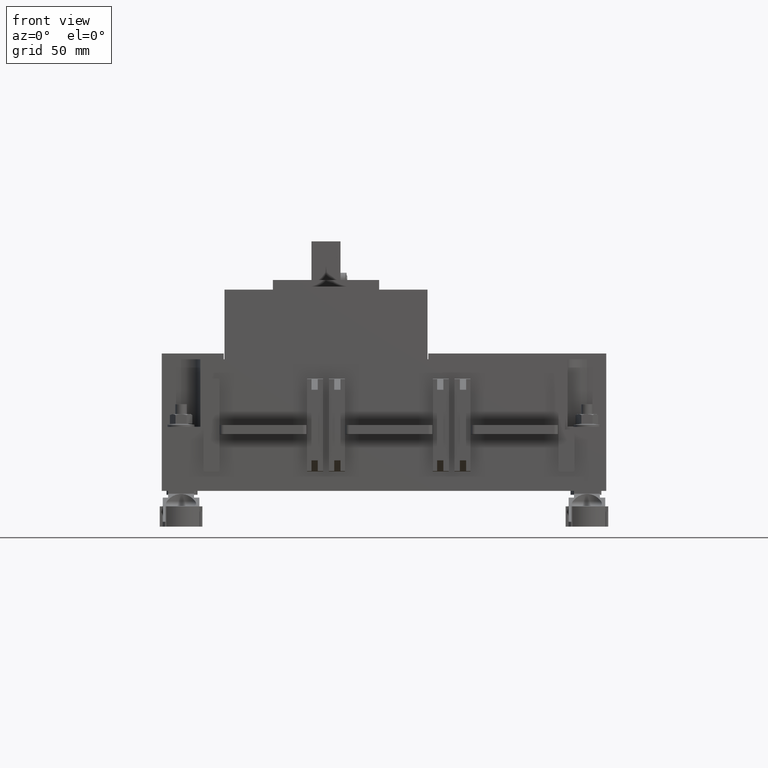
[diagram: clean part render]
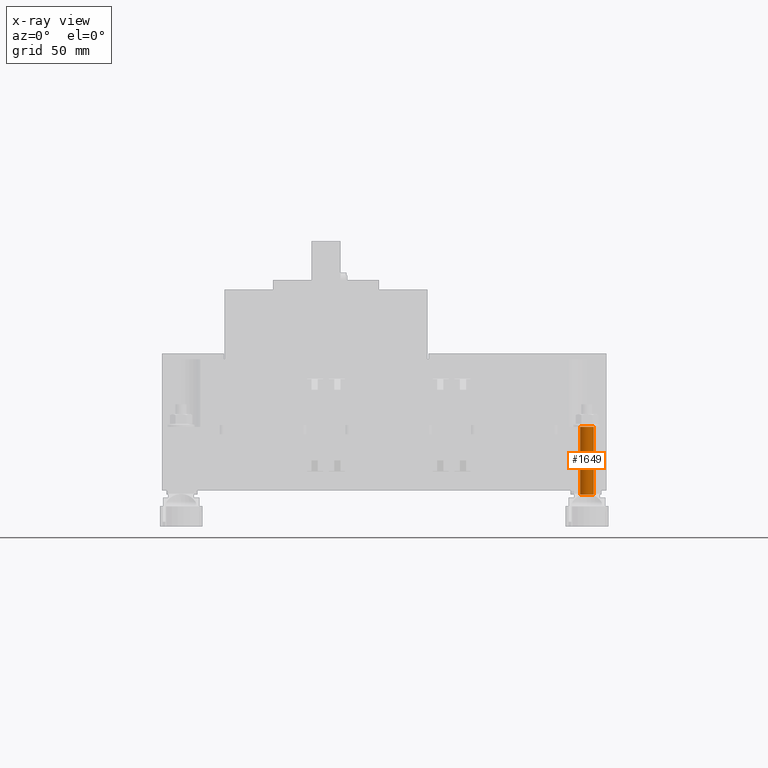
[diagram: x-ray — body ghosted, one internal face saturated and labeled with its STEP entity id]
A machine part, front view, then the same camera in x-ray: the body is ghosted and one INTERNAL B-rep face — a face not visible from any outside direction — is saturated and labeled: STEP entity #1649.
In plain terms, the highlighted cylindrical surface (bore or boss wall) has radius 3.5 mm, axis along (0, 0, -1).
Its self-contained STEP definition (entity closure, byte-faithful):
#474=CYLINDRICAL_SURFACE('',#15996,3.5);
#889=FACE_BOUND('',#3855,.T.);
#890=FACE_BOUND('',#3856,.T.);
#1649=ADVANCED_FACE('',(#889,#890),#474,.F.);
#3855=EDGE_LOOP('',(#7813));
#3856=EDGE_LOOP('',(#7814));
#4338=CIRCLE('',#15633,3.5);
#4445=CIRCLE('',#15994,3.5);
#7813=ORIENTED_EDGE('',*,*,#11707,.T.);
#7814=ORIENTED_EDGE('',*,*,#11078,.T.);
#9378=VERTEX_POINT('',#23070);
#9780=VERTEX_POINT('',#24355);
#11078=EDGE_CURVE('',#9378,#9378,#4338,.T.);
#11707=EDGE_CURVE('',#9780,#9780,#4445,.T.);
#15633=AXIS2_PLACEMENT_3D('',#23069,#18395,#18396);
#15994=AXIS2_PLACEMENT_3D('',#24354,#19639,#19640);
#15996=AXIS2_PLACEMENT_3D('',#24357,#19643,#19644);
#18395=DIRECTION('',(0.,0.,-1.));
#18396=DIRECTION('',(1.,0.,0.));
#19639=DIRECTION('',(0.,0.,1.));
#19640=DIRECTION('',(1.,0.,0.));
#19643=DIRECTION('',(0.,0.,-1.));
#19644=DIRECTION('',(-1.,0.,0.));
#23069=CARTESIAN_POINT('',(135.,-100.,-110.500000000001));
#23070=CARTESIAN_POINT('',(138.5,-100.,-110.500000000001));
#24354=CARTESIAN_POINT('',(135.,-100.,-75.4000000000012));
#24355=CARTESIAN_POINT('',(138.5,-100.,-75.4000000000012));
#24357=CARTESIAN_POINT('',(135.,-100.,-79.6000000000012));